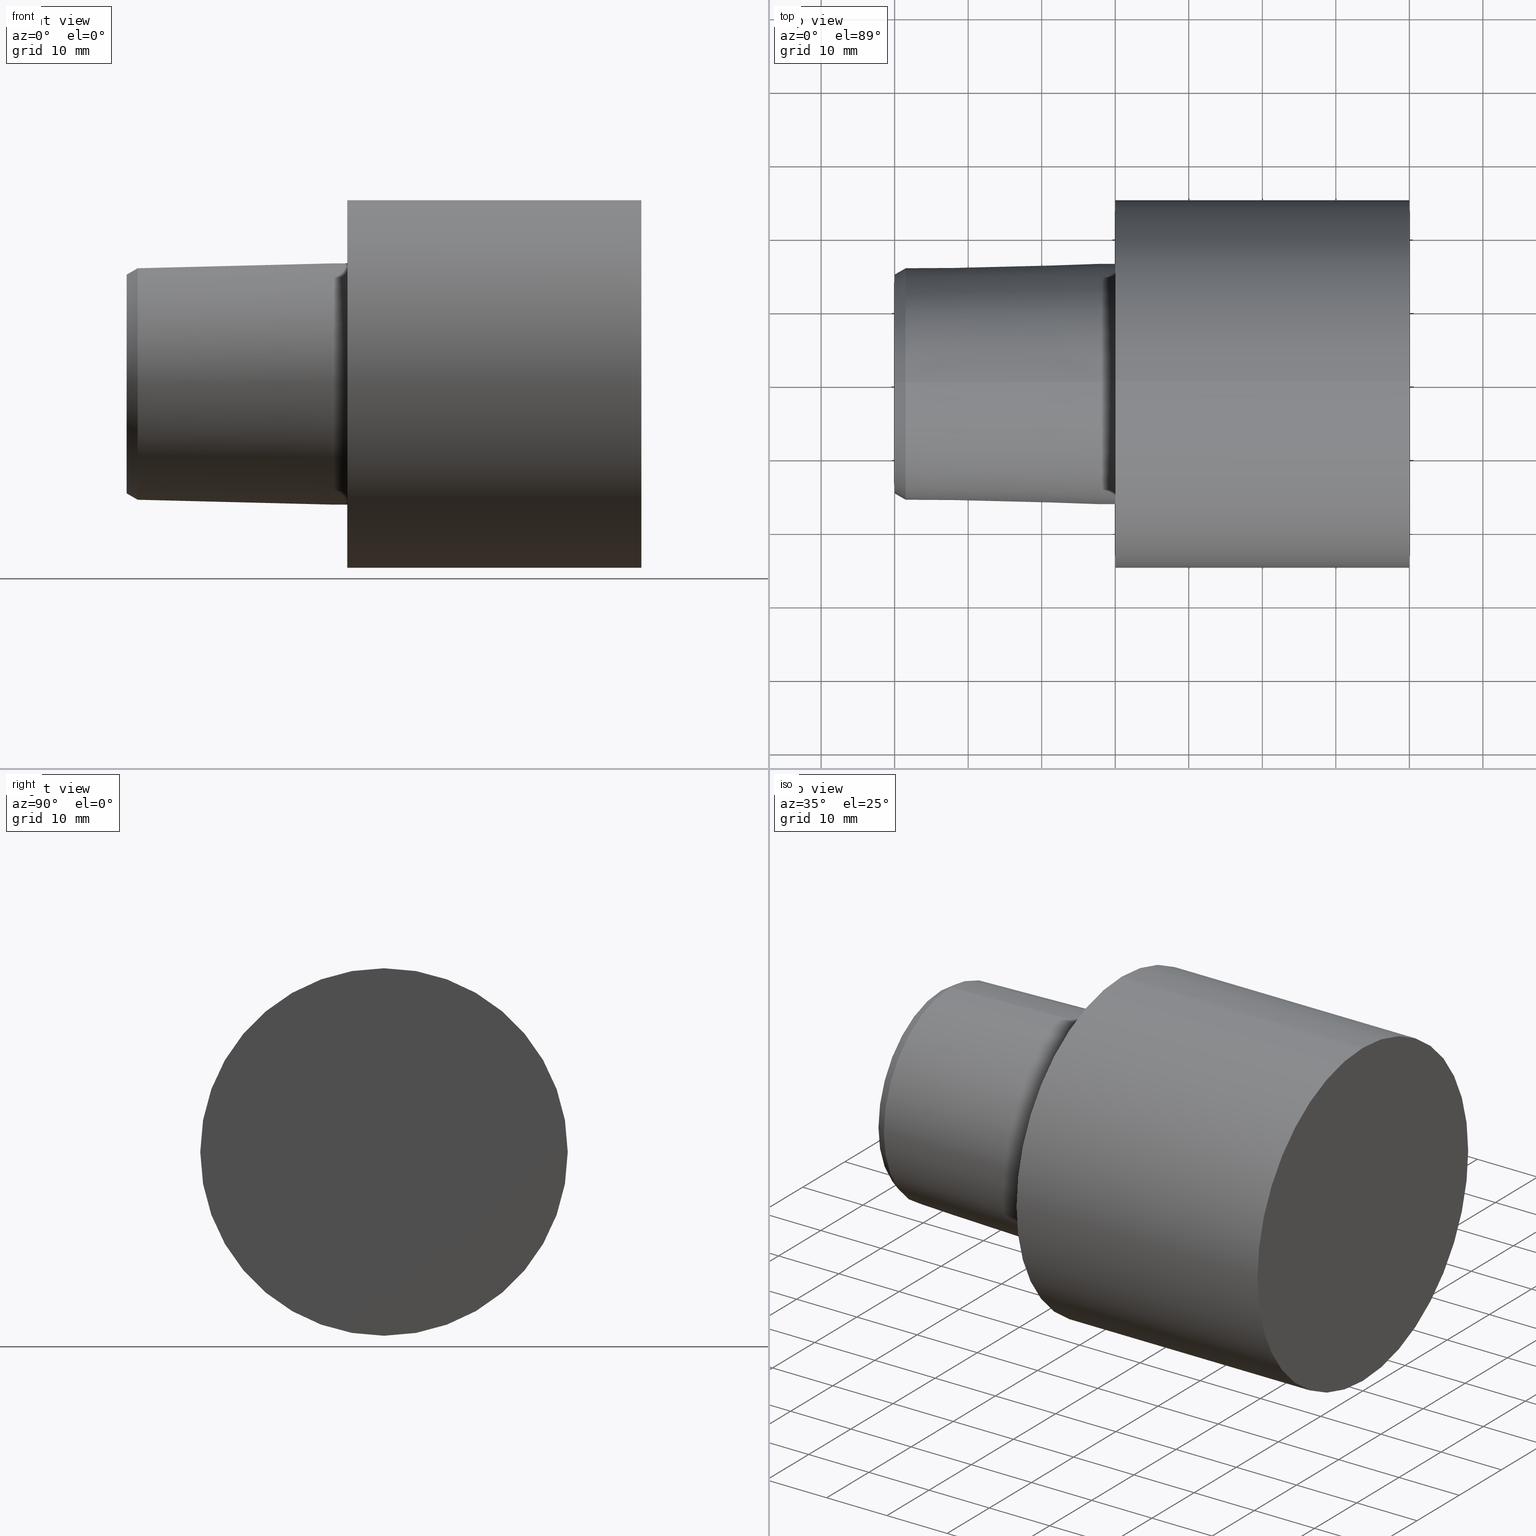
[diagram: canonical four-view strip — front | top / right | iso, engineering-drawing reading convention]
A machine part, canonical four-view strip (front | top / right | iso — engineering-drawing reading convention). The complete STEP part file that produces these views, byte-faithful:
ISO-10303-21;
HEADER;
FILE_DESCRIPTION (( 'STEP AP203' ),
    '1' );
FILE_NAME ('C5-S50-40.stp',
    '2022-03-11T15:28:41',
    ( '' ),
    ( '' ),
    'SwSTEP 2.0',
    'SolidWorks 2021',
    '' );
FILE_SCHEMA (( 'CONFIG_CONTROL_DESIGN' ));
ENDSEC;

DATA;
#1 = CARTESIAN_POINT ( 'NONE',  ( -29.99999996776130118, 0.000000000000000000, 0.000000000000000000 ) ) ;
#2 = EDGE_CURVE ( 'NONE', #222, #269, #85, .T. ) ;
#3 = VERTEX_POINT ( 'NONE', #274 ) ;
#4 = CARTESIAN_POINT ( 'NONE',  ( 39.99999995919999662, 0.000000000000000000, 0.000000000000000000 ) ) ;
#5 = ORIENTED_EDGE ( 'NONE', *, *, #141, .F. ) ;
#6 = APPLICATION_CONTEXT ( 'configuration controlled 3d designs of mechanical parts and assemblies' ) ;
#7 = CALENDAR_DATE ( 2022, 11, 3 ) ;
#8 = DESIGN_CONTEXT ( 'detailed design', #6, 'design' ) ;
#9 = ADVANCED_BREP_SHAPE_REPRESENTATION ( 'C5-S50-40', ( #226, #113 ), #223 ) ;
#10 = PERSON_AND_ORGANIZATION_ROLE ( 'creator' ) ;
#11 = DIRECTION ( 'NONE',  ( 0.000000000000000000, 0.000000000000000000, 1.000000000000000000 ) ) ;
#12 = ORIENTED_EDGE ( 'NONE', *, *, #221, .T. ) ;
#13 = AXIS2_PLACEMENT_3D ( 'NONE', #41, #203, #91 ) ;
#14 = APPROVAL_STATUS ( 'not_yet_approved' ) ;
#15 = DIRECTION ( 'NONE',  ( -1.000000000000000000, 0.000000000000000000, 0.000000000000000000 ) ) ;
#16 = PERSON_AND_ORGANIZATION ( #126, #311 ) ;
#17 = CARTESIAN_POINT ( 'NONE',  ( -29.99999996776130118, 0.000000000000000000, 16.40000330327199762 ) ) ;
#18 = VECTOR ( 'NONE', #308, 999.9999999999998863 ) ;
#19 = FACE_OUTER_BOUND ( 'NONE', #332, .T. ) ;
#20 = ORIENTED_EDGE ( 'NONE', *, *, #21, .T. ) ;
#21 = EDGE_CURVE ( 'NONE', #206, #299, #333, .T. ) ;
#22 = DIRECTION ( 'NONE',  ( 1.000000000000000000, 0.000000000000000000, 0.000000000000000000 ) ) ;
#23 = ORIENTED_EDGE ( 'NONE', *, *, #142, .T. ) ;
#24 = FACE_OUTER_BOUND ( 'NONE', #167, .T. ) ;
#25 = DIRECTION ( 'NONE',  ( -1.000000000000000000, 0.000000000000000000, 0.000000000000000000 ) ) ;
#26 = CIRCLE ( 'NONE', #168, 24.98999997451020150 ) ;
#27 = EDGE_LOOP ( 'NONE', ( #297, #101, #237, #354 ) ) ;
#28 = LINE ( 'NONE', #242, #321 ) ;
#29 = ORIENTED_EDGE ( 'NONE', *, *, #227, .F. ) ;
#30 = CC_DESIGN_PERSON_AND_ORGANIZATION_ASSIGNMENT ( #88, #175, ( #73 ) ) ;
#31 = DIRECTION ( 'NONE',  ( 1.000000000000000000, 0.000000000000000000, 0.000000000000000000 ) ) ;
#32 = EDGE_CURVE ( 'NONE', #83, #103, #34, .T. ) ;
#33 = PRODUCT_RELATED_PRODUCT_CATEGORY ( 'detail', '', ( #210 ) ) ;
#34 = CIRCLE ( 'NONE', #313, 14.87641846198772733 ) ;
#35 = DIRECTION ( 'NONE',  ( -1.000000000000000000, 0.000000000000000000, 0.000000000000000000 ) ) ;
#36 = PERSON_AND_ORGANIZATION ( #126, #311 ) ;
#37 = CARTESIAN_POINT ( 'NONE',  ( -28.49999997092999848, 0.000000000000000000, 0.000000000000000000 ) ) ;
#38 = AXIS2_PLACEMENT_3D ( 'NONE', #335, #164, #331 ) ;
#39 = FACE_OUTER_BOUND ( 'NONE', #229, .T. ) ;
#40 = CALENDAR_DATE ( 2022, 11, 3 ) ;
#41 = CARTESIAN_POINT ( 'NONE',  ( -2.199937517756064054, 0.000000000000000000, 0.000000000000000000 ) ) ;
#42 = ORIENTED_EDGE ( 'NONE', *, *, #2, .F. ) ;
#43 = CIRCLE ( 'NONE', #87, 16.40000330327199762 ) ;
#44 = CARTESIAN_POINT ( 'NONE',  ( -29.99999996776130118, 2.008421155135807723E-15, -16.40000330327199762 ) ) ;
#45 = CARTESIAN_POINT ( 'NONE',  ( 0.000000000000000000, 0.000000000000000000, 0.000000000000000000 ) ) ;
#46 = ORIENTED_EDGE ( 'NONE', *, *, #21, .F. ) ;
#47 = ADVANCED_FACE ( 'NONE', ( #280 ), #162, .T. ) ;
#48 = APPROVAL ( #14, 'UNSPECIFIED' ) ;
#49 = DIRECTION ( 'NONE',  ( -1.000000000000000000, 0.000000000000000000, 0.000000000000000000 ) ) ;
#50 = EDGE_LOOP ( 'NONE', ( #160, #188, #42, #29 ) ) ;
#51 = CC_DESIGN_APPROVAL ( #89, ( #73 ) ) ;
#52 = CARTESIAN_POINT ( 'NONE',  ( -2.199937517756064054, 0.000000000000000000, 0.000000000000000000 ) ) ;
#53 = PLANE ( 'NONE',  #59 ) ;
#54 = CARTESIAN_POINT ( 'NONE',  ( -29.99999996776130118, 0.000000000000000000, 0.000000000000000000 ) ) ;
#55 = CIRCLE ( 'NONE', #220, 14.87641846198772733 ) ;
#56 = ORIENTED_EDGE ( 'NONE', *, *, #151, .T. ) ;
#57 = EDGE_CURVE ( 'NONE', #103, #299, #28, .T. ) ;
#58 = AXIS2_PLACEMENT_3D ( 'NONE', #252, #165, #191 ) ;
#59 = AXIS2_PLACEMENT_3D ( 'NONE', #136, #108, #337 ) ;
#60 = ADVANCED_FACE ( 'NONE', ( #138 ), #328, .F. ) ;
#61 = ADVANCED_FACE ( 'NONE', ( #304 ), #53, .F. ) ;
#62 = APPROVAL_ROLE ( '' ) ;
#63 = CARTESIAN_POINT ( 'NONE',  ( 0.000000000000000000, 24.98999997451020150, 0.000000000000000000 ) ) ;
#64 = FACE_OUTER_BOUND ( 'NONE', #294, .T. ) ;
#65 = COORDINATED_UNIVERSAL_TIME_OFFSET ( 6, 0, .BEHIND. ) ;
#66 = DIRECTION ( 'NONE',  ( 0.000000000000000000, 0.000000000000000000, -1.000000000000000000 ) ) ;
#67 = ORIENTED_EDGE ( 'NONE', *, *, #151, .F. ) ;
#68 = CONICAL_SURFACE ( 'NONE', #236, 15.74244386394270734, 0.5235987755982987046 ) ;
#69 = DIRECTION ( 'NONE',  ( 0.000000000000000000, 0.000000000000000000, 1.000000000000000000 ) ) ;
#70 = ORIENTED_EDGE ( 'NONE', *, *, #329, .T. ) ;
#71 = DIRECTION ( 'NONE',  ( 0.000000000000000000, 0.000000000000000000, 1.000000000000000000 ) ) ;
#72 = DIRECTION ( 'NONE',  ( 0.000000000000000000, 0.000000000000000000, 1.000000000000000000 ) ) ;
#73 = PRODUCT_DEFINITION_FORMATION_WITH_SPECIFIED_SOURCE ( 'ANY', '', #210, .NOT_KNOWN. ) ;
#74 = CC_DESIGN_SECURITY_CLASSIFICATION ( #241, ( #73 ) ) ;
#75 = ADVANCED_FACE ( 'NONE', ( #343 ), #68, .T. ) ;
#76 = ORIENTED_EDGE ( 'NONE', *, *, #141, .T. ) ;
#77 = EDGE_CURVE ( 'NONE', #269, #222, #277, .T. ) ;
#78 = DIRECTION ( 'NONE',  ( 0.000000000000000000, 0.000000000000000000, 1.000000000000000000 ) ) ;
#79 = CARTESIAN_POINT ( 'NONE',  ( -28.49999997092999848, 1.968157252004620712E-15, 15.74244386394270734 ) ) ;
#80 = DIRECTION ( 'NONE',  ( 0.000000000000000000, 0.000000000000000000, 1.000000000000000000 ) ) ;
#81 = EDGE_CURVE ( 'NONE', #83, #206, #256, .T. ) ;
#82 = VERTEX_POINT ( 'NONE', #148 ) ;
#83 = VERTEX_POINT ( 'NONE', #323 ) ;
#84 = LOCAL_TIME ( 9, 28, 41.00000000000000000, #295 ) ;
#85 = CIRCLE ( 'NONE', #38, 24.98999997451020150 ) ;
#86 = CARTESIAN_POINT ( 'NONE',  ( 0.000000000000000000, 0.000000000000000000, 0.000000000000000000 ) ) ;
#87 = AXIS2_PLACEMENT_3D ( 'NONE', #45, #273, #169 ) ;
#88 = PERSON_AND_ORGANIZATION ( #126, #311 ) ;
#89 = APPROVAL ( #99, 'UNSPECIFIED' ) ;
#90 = PERSON_AND_ORGANIZATION ( #126, #311 ) ;
#91 = DIRECTION ( 'NONE',  ( 0.000000000000000000, 0.000000000000000000, -1.000000000000000000 ) ) ;
#92 = PERSON_AND_ORGANIZATION_ROLE ( 'classification_officer' ) ;
#93 = CARTESIAN_POINT ( 'NONE',  ( -29.99999996776130118, 0.000000000000000000, 0.000000000000000000 ) ) ;
#94 = CONICAL_SURFACE ( 'NONE', #286, 16.40000330327199762, 0.02499699292341668252 ) ;
#95 = ADVANCED_FACE ( 'NONE', ( #268 ), #173, .T. ) ;
#96 = APPROVAL_DATE_TIME ( #149, #353 ) ;
#97 = DIRECTION ( 'NONE',  ( 0.000000000000000000, 0.000000000000000000, 1.000000000000000000 ) ) ;
#98 = VECTOR ( 'NONE', #296, 1000.000000000000000 ) ;
#99 = APPROVAL_STATUS ( 'not_yet_approved' ) ;
#100 = DIRECTION ( 'NONE',  ( 1.000000000000000000, 0.000000000000000000, 0.000000000000000000 ) ) ;
#101 = ORIENTED_EDGE ( 'NONE', *, *, #57, .T. ) ;
#102 = CARTESIAN_POINT ( 'NONE',  ( -29.99999996776130118, 0.000000000000000000, 0.000000000000000000 ) ) ;
#103 = VERTEX_POINT ( 'NONE', #157 ) ;
#104 = DIRECTION ( 'NONE',  ( 0.8660254037844387076, 6.123233995736768501E-17, 0.4999999999999998890 ) ) ;
#105 =( NAMED_UNIT ( * ) SI_UNIT ( $, .STERADIAN. ) SOLID_ANGLE_UNIT ( ) );
#106 = ORIENTED_EDGE ( 'NONE', *, *, #312, .F. ) ;
#107 = CIRCLE ( 'NONE', #218, 16.40000330327199762 ) ;
#108 = DIRECTION ( 'NONE',  ( 1.000000000000000000, 0.000000000000000000, 0.000000000000000000 ) ) ;
#109 = AXIS2_PLACEMENT_3D ( 'NONE', #93, #205, #97 ) ;
#110 = ORIENTED_EDGE ( 'NONE', *, *, #81, .T. ) ;
#111 = ADVANCED_FACE ( 'NONE', ( #19 ), #317, .T. ) ;
#112 = CC_DESIGN_DATE_AND_TIME_ASSIGNMENT ( #156, #267, ( #241 ) ) ;
#113 = AXIS2_PLACEMENT_3D ( 'NONE', #183, #71, #118 ) ;
#114 = CLOSED_SHELL ( 'NONE', ( #61, #189, #254, #47, #145, #305, #60, #251, #111, #95, #75 ) ) ;
#115 = EDGE_CURVE ( 'NONE', #206, #197, #345, .T. ) ;
#116 = APPROVAL_DATE_TIME ( #322, #48 ) ;
#117 = DIRECTION ( 'NONE',  ( -1.000000000000000000, 0.000000000000000000, 0.000000000000000000 ) ) ;
#118 = DIRECTION ( 'NONE',  ( 1.000000000000000000, 0.000000000000000000, 0.000000000000000000 ) ) ;
#119 = CARTESIAN_POINT ( 'NONE',  ( 0.000000000000000000, 0.000000000000000000, 24.98999997451020150 ) ) ;
#120 = ORIENTED_EDGE ( 'NONE', *, *, #77, .T. ) ;
#121 = PERSON_AND_ORGANIZATION_ROLE ( 'creator' ) ;
#122 = LINE ( 'NONE', #44, #98 ) ;
#123 = VERTEX_POINT ( 'NONE', #125 ) ;
#124 = APPROVAL_STATUS ( 'not_yet_approved' ) ;
#125 = CARTESIAN_POINT ( 'NONE',  ( 39.99999995919999662, 3.060392347947635560E-15, -24.98999997451020150 ) ) ;
#126 = PERSON ( 'UNSPECIFIED', 'UNSPECIFIED', 'UNSPECIFIED', ('UNSPECIFIED'), ('UNSPECIFIED'), ('UNSPECIFIED') ) ;
#127 = ORIENTED_EDGE ( 'NONE', *, *, #172, .F. ) ;
#128 = CC_DESIGN_PERSON_AND_ORGANIZATION_ASSIGNMENT ( #211, #92, ( #241 ) ) ;
#129 = CARTESIAN_POINT ( 'NONE',  ( -2.199937517756064054, 2.008421155135807723E-15, -16.40000330327199762 ) ) ;
#130 = CARTESIAN_POINT ( 'NONE',  ( -2.199937517756064054, 2.008421155135807723E-15, 16.40000330327199762 ) ) ;
#131 = DIRECTION ( 'NONE',  ( 0.000000000000000000, 0.000000000000000000, 1.000000000000000000 ) ) ;
#132 = APPLICATION_CONTEXT ( 'configuration controlled 3d designs of mechanical parts and assemblies' ) ;
#133 = ORIENTED_EDGE ( 'NONE', *, *, #77, .F. ) ;
#134 = AXIS2_PLACEMENT_3D ( 'NONE', #4, #249, #78 ) ;
#135 =( LENGTH_UNIT ( ) NAMED_UNIT ( * ) SI_UNIT ( .MILLI., .METRE. ) );
#136 = CARTESIAN_POINT ( 'NONE',  ( -29.99999996776130118, 14.87641846198772733, 0.000000000000000000 ) ) ;
#137 = CC_DESIGN_PERSON_AND_ORGANIZATION_ASSIGNMENT ( #230, #10, ( #73 ) ) ;
#138 = FACE_OUTER_BOUND ( 'NONE', #264, .T. ) ;
#139 = CC_DESIGN_APPROVAL ( #353, ( #177 ) ) ;
#140 = EDGE_LOOP ( 'NONE', ( #127, #198, #23, #194 ) ) ;
#141 = EDGE_CURVE ( 'NONE', #82, #306, #215, .T. ) ;
#142 = EDGE_CURVE ( 'NONE', #82, #155, #235, .T. ) ;
#143 = DIRECTION ( 'NONE',  ( 0.000000000000000000, 0.000000000000000000, -1.000000000000000000 ) ) ;
#144 = CIRCLE ( 'NONE', #349, 24.98999997451020150 ) ;
#145 = ADVANCED_FACE ( 'NONE', ( #184, #64 ), #351, .F. ) ;
#146 = MECHANICAL_CONTEXT ( 'NONE', #132, 'mechanical' ) ;
#147 = LOCAL_TIME ( 9, 28, 41.00000000000000000, #292 ) ;
#148 = CARTESIAN_POINT ( 'NONE',  ( 0.000000000000000000, 0.000000000000000000, 16.40000330327199762 ) ) ;
#149 = DATE_AND_TIME ( #265, #84 ) ;
#150 = DIRECTION ( 'NONE',  ( 0.000000000000000000, 0.000000000000000000, -1.000000000000000000 ) ) ;
#151 = EDGE_CURVE ( 'NONE', #123, #3, #26, .T. ) ;
#152 = ORIENTED_EDGE ( 'NONE', *, *, #341, .F. ) ;
#153 = APPLICATION_PROTOCOL_DEFINITION ( 'international standard', 'config_control_design', 1994, #6 ) ;
#154 = DIRECTION ( 'NONE',  ( 0.9996875914402667540, 0.000000000000000000, -0.02499438977767824352 ) ) ;
#155 = VERTEX_POINT ( 'NONE', #352 ) ;
#156 = DATE_AND_TIME ( #180, #199 ) ;
#157 = CARTESIAN_POINT ( 'NONE',  ( -29.99999996776130118, 1.874864587049208810E-15, 14.87641846198772733 ) ) ;
#158 = AXIS2_PLACEMENT_3D ( 'NONE', #54, #248, #298 ) ;
#159 = DIRECTION ( 'NONE',  ( 0.000000000000000000, 0.000000000000000000, 1.000000000000000000 ) ) ;
#160 = ORIENTED_EDGE ( 'NONE', *, *, #240, .T. ) ;
#161 = CC_DESIGN_DATE_AND_TIME_ASSIGNMENT ( #178, #258, ( #177 ) ) ;
#162 = CYLINDRICAL_SURFACE ( 'NONE', #200, 16.40000330327199762 ) ;
#163 = DIRECTION ( 'NONE',  ( 0.000000000000000000, 0.000000000000000000, 1.000000000000000000 ) ) ;
#164 = DIRECTION ( 'NONE',  ( -1.000000000000000000, 0.000000000000000000, 0.000000000000000000 ) ) ;
#165 = DIRECTION ( 'NONE',  ( -1.000000000000000000, 0.000000000000000000, 0.000000000000000000 ) ) ;
#166 = CC_DESIGN_PERSON_AND_ORGANIZATION_ASSIGNMENT ( #201, #262, ( #210 ) ) ;
#167 = EDGE_LOOP ( 'NONE', ( #190, #56, #217, #133 ) ) ;
#168 = AXIS2_PLACEMENT_3D ( 'NONE', #289, #117, #159 ) ;
#169 = DIRECTION ( 'NONE',  ( 0.000000000000000000, 0.000000000000000000, 1.000000000000000000 ) ) ;
#170 = ORIENTED_EDGE ( 'NONE', *, *, #312, .T. ) ;
#171 = CARTESIAN_POINT ( 'NONE',  ( -29.99999996776130118, 0.000000000000000000, 0.000000000000000000 ) ) ;
#172 = EDGE_CURVE ( 'NONE', #306, #197, #122, .T. ) ;
#173 = CONICAL_SURFACE ( 'NONE', #13, 16.40000330327199762, 0.02499699292341668252 ) ;
#174 = CONICAL_SURFACE ( 'NONE', #209, 15.74244386394270734, 0.5235987755982987046 ) ;
#175 = PERSON_AND_ORGANIZATION_ROLE ( 'design_supplier' ) ;
#176 = LINE ( 'NONE', #285, #307 ) ;
#177 = PRODUCT_DEFINITION ( 'UNKNOWN', '', #73, #8 ) ;
#178 = DATE_AND_TIME ( #350, #147 ) ;
#179 = DIRECTION ( 'NONE',  ( -1.000000000000000000, 0.000000000000000000, 0.000000000000000000 ) ) ;
#180 = CALENDAR_DATE ( 2022, 11, 3 ) ;
#181 = LINE ( 'NONE', #291, #336 ) ;
#182 = AXIS2_PLACEMENT_3D ( 'NONE', #63, #100, #186 ) ;
#183 = CARTESIAN_POINT ( 'NONE',  ( 0.000000000000000000, 0.000000000000000000, 0.000000000000000000 ) ) ;
#184 = FACE_BOUND ( 'NONE', #253, .T. ) ;
#185 = ORIENTED_EDGE ( 'NONE', *, *, #334, .F. ) ;
#186 = DIRECTION ( 'NONE',  ( 0.000000000000000000, 1.000000000000000000, 0.000000000000000000 ) ) ;
#187 = LOCAL_TIME ( 9, 28, 41.00000000000000000, #65 ) ;
#188 = ORIENTED_EDGE ( 'NONE', *, *, #257, .T. ) ;
#189 = ADVANCED_FACE ( 'NONE', ( #348 ), #174, .T. ) ;
#190 = ORIENTED_EDGE ( 'NONE', *, *, #257, .F. ) ;
#191 = DIRECTION ( 'NONE',  ( 0.000000000000000000, 0.000000000000000000, 1.000000000000000000 ) ) ;
#192 = CARTESIAN_POINT ( 'NONE',  ( 0.000000000000000000, 2.008421155135807723E-15, -16.40000330327199762 ) ) ;
#193 = ORIENTED_EDGE ( 'NONE', *, *, #142, .F. ) ;
#194 = ORIENTED_EDGE ( 'NONE', *, *, #329, .F. ) ;
#195 = AXIS2_PLACEMENT_3D ( 'NONE', #325, #179, #69 ) ;
#196 = DIRECTION ( 'NONE',  ( 0.000000000000000000, 0.000000000000000000, 1.000000000000000000 ) ) ;
#197 = VERTEX_POINT ( 'NONE', #129 ) ;
#198 = ORIENTED_EDGE ( 'NONE', *, *, #334, .T. ) ;
#199 = LOCAL_TIME ( 9, 28, 41.00000000000000000, #314 ) ;
#200 = AXIS2_PLACEMENT_3D ( 'NONE', #1, #278, #131 ) ;
#201 = PERSON_AND_ORGANIZATION ( #126, #311 ) ;
#202 = DATE_AND_TIME ( #40, #318 ) ;
#203 = DIRECTION ( 'NONE',  ( 1.000000000000000000, 0.000000000000000000, 0.000000000000000000 ) ) ;
#204 = APPROVAL_ROLE ( '' ) ;
#205 = DIRECTION ( 'NONE',  ( -1.000000000000000000, 0.000000000000000000, 0.000000000000000000 ) ) ;
#206 = VERTEX_POINT ( 'NONE', #238 ) ;
#207 = APPROVAL_DATE_TIME ( #202, #89 ) ;
#208 = CARTESIAN_POINT ( 'NONE',  ( -2.199937517756064054, 0.000000000000000000, 0.000000000000000000 ) ) ;
#209 = AXIS2_PLACEMENT_3D ( 'NONE', #37, #22, #150 ) ;
#210 = PRODUCT ( 'C5-S50-40', 'C5-S50-40', '', ( #146 ) ) ;
#211 = PERSON_AND_ORGANIZATION ( #126, #311 ) ;
#212 = DIRECTION ( 'NONE',  ( -1.000000000000000000, 0.000000000000000000, 0.000000000000000000 ) ) ;
#213 = UNCERTAINTY_MEASURE_WITH_UNIT (LENGTH_MEASURE( 1.000000000000000082E-05 ), #135, 'distance_accuracy_value', 'NONE');
#214 = ORIENTED_EDGE ( 'NONE', *, *, #32, .F. ) ;
#215 = CIRCLE ( 'NONE', #195, 16.40000330327199762 ) ;
#216 = CARTESIAN_POINT ( 'NONE',  ( -28.49999997092999848, 0.000000000000000000, 0.000000000000000000 ) ) ;
#217 = ORIENTED_EDGE ( 'NONE', *, *, #227, .T. ) ;
#218 = AXIS2_PLACEMENT_3D ( 'NONE', #52, #49, #163 ) ;
#219 = ORIENTED_EDGE ( 'NONE', *, *, #32, .T. ) ;
#220 = AXIS2_PLACEMENT_3D ( 'NONE', #102, #315, #263 ) ;
#221 = EDGE_CURVE ( 'NONE', #103, #83, #55, .T. ) ;
#222 = VERTEX_POINT ( 'NONE', #119 ) ;
#223 =( GEOMETRIC_REPRESENTATION_CONTEXT ( 3 ) GLOBAL_UNCERTAINTY_ASSIGNED_CONTEXT ( ( #213 ) ) GLOBAL_UNIT_ASSIGNED_CONTEXT ( ( #135, #300, #105 ) ) REPRESENTATION_CONTEXT ( 'NONE', 'WORKASPACE' ) );
#224 = DIRECTION ( 'NONE',  ( 0.000000000000000000, 0.000000000000000000, 1.000000000000000000 ) ) ;
#225 = AXIS2_PLACEMENT_3D ( 'NONE', #355, #25, #244 ) ;
#226 = MANIFOLD_SOLID_BREP ( 'Scale1', #114 ) ;
#227 = EDGE_CURVE ( 'NONE', #3, #222, #176, .T. ) ;
#228 = CARTESIAN_POINT ( 'NONE',  ( -29.99999996776130118, 0.000000000000000000, 0.000000000000000000 ) ) ;
#229 = EDGE_LOOP ( 'NONE', ( #106, #46, #270, #70 ) ) ;
#230 = PERSON_AND_ORGANIZATION ( #126, #311 ) ;
#231 = DIRECTION ( 'NONE',  ( -1.000000000000000000, 0.000000000000000000, 0.000000000000000000 ) ) ;
#232 = ORIENTED_EDGE ( 'NONE', *, *, #279, .F. ) ;
#233 = CARTESIAN_POINT ( 'NONE',  ( -2.199937517756064054, 0.000000000000000000, -16.40000330327199762 ) ) ;
#234 = PERSON_AND_ORGANIZATION ( #126, #311 ) ;
#235 = LINE ( 'NONE', #17, #283 ) ;
#236 = AXIS2_PLACEMENT_3D ( 'NONE', #282, #31, #143 ) ;
#237 = ORIENTED_EDGE ( 'NONE', *, *, #279, .T. ) ;
#238 = CARTESIAN_POINT ( 'NONE',  ( -28.49999997092999848, 0.000000000000000000, -15.74244386394270734 ) ) ;
#239 = ORIENTED_EDGE ( 'NONE', *, *, #57, .F. ) ;
#240 = EDGE_CURVE ( 'NONE', #3, #123, #144, .T. ) ;
#241 = SECURITY_CLASSIFICATION ( '', '', #288 ) ;
#242 = CARTESIAN_POINT ( 'NONE',  ( -28.49999997092999848, 1.927893348873434490E-15, 15.74244386394270734 ) ) ;
#243 = CARTESIAN_POINT ( 'NONE',  ( 0.000000000000000000, 3.060392347947635560E-15, -24.98999997451020150 ) ) ;
#244 = DIRECTION ( 'NONE',  ( 0.000000000000000000, 0.000000000000000000, 1.000000000000000000 ) ) ;
#245 = AXIS2_PLACEMENT_3D ( 'NONE', #86, #255, #224 ) ;
#246 = DIRECTION ( 'NONE',  ( -1.000000000000000000, 0.000000000000000000, 0.000000000000000000 ) ) ;
#247 = EDGE_LOOP ( 'NONE', ( #232, #170, #320, #272 ) ) ;
#248 = DIRECTION ( 'NONE',  ( -1.000000000000000000, 0.000000000000000000, 0.000000000000000000 ) ) ;
#249 = DIRECTION ( 'NONE',  ( -1.000000000000000000, 0.000000000000000000, 0.000000000000000000 ) ) ;
#250 = CC_DESIGN_APPROVAL ( #48, ( #241 ) ) ;
#251 = ADVANCED_FACE ( 'NONE', ( #293 ), #346, .T. ) ;
#252 = CARTESIAN_POINT ( 'NONE',  ( -2.199937517756064054, 0.000000000000000000, 0.000000000000000000 ) ) ;
#253 = EDGE_LOOP ( 'NONE', ( #5, #185 ) ) ;
#254 = ADVANCED_FACE ( 'NONE', ( #39 ), #94, .T. ) ;
#255 = DIRECTION ( 'NONE',  ( -1.000000000000000000, 0.000000000000000000, 0.000000000000000000 ) ) ;
#256 = LINE ( 'NONE', #339, #261 ) ;
#257 = EDGE_CURVE ( 'NONE', #123, #269, #181, .T. ) ;
#258 = DATE_TIME_ROLE ( 'creation_date' ) ;
#259 = CARTESIAN_POINT ( 'NONE',  ( 39.99999995919999662, 0.000000000000000000, 0.000000000000000000 ) ) ;
#260 = EDGE_LOOP ( 'NONE', ( #219, #12 ) ) ;
#261 = VECTOR ( 'NONE', #266, 1000.000000000000000 ) ;
#262 = PERSON_AND_ORGANIZATION_ROLE ( 'design_owner' ) ;
#263 = DIRECTION ( 'NONE',  ( 0.000000000000000000, 0.000000000000000000, 1.000000000000000000 ) ) ;
#264 = EDGE_LOOP ( 'NONE', ( #309, #67 ) ) ;
#265 = CALENDAR_DATE ( 2022, 11, 3 ) ;
#266 = DIRECTION ( 'NONE',  ( 0.8660254037844387076, 0.000000000000000000, -0.4999999999999998890 ) ) ;
#267 = DATE_TIME_ROLE ( 'classification_date' ) ;
#268 = FACE_OUTER_BOUND ( 'NONE', #247, .T. ) ;
#269 = VERTEX_POINT ( 'NONE', #243 ) ;
#270 = ORIENTED_EDGE ( 'NONE', *, *, #115, .T. ) ;
#271 = DIRECTION ( 'NONE',  ( -1.000000000000000000, 0.000000000000000000, 0.000000000000000000 ) ) ;
#272 = ORIENTED_EDGE ( 'NONE', *, *, #115, .F. ) ;
#273 = DIRECTION ( 'NONE',  ( -1.000000000000000000, 0.000000000000000000, 0.000000000000000000 ) ) ;
#274 = CARTESIAN_POINT ( 'NONE',  ( 39.99999995919999662, 0.000000000000000000, 24.98999997451020150 ) ) ;
#275 = CYLINDRICAL_SURFACE ( 'NONE', #158, 24.98999997451020150 ) ;
#276 = ORIENTED_EDGE ( 'NONE', *, *, #172, .T. ) ;
#277 = CIRCLE ( 'NONE', #245, 24.98999997451020150 ) ;
#278 = DIRECTION ( 'NONE',  ( -1.000000000000000000, 0.000000000000000000, 0.000000000000000000 ) ) ;
#279 = EDGE_CURVE ( 'NONE', #299, #206, #303, .T. ) ;
#280 = FACE_OUTER_BOUND ( 'NONE', #140, .T. ) ;
#281 = APPROVAL_PERSON_ORGANIZATION ( #36, #48, #204 ) ;
#282 = CARTESIAN_POINT ( 'NONE',  ( -28.49999997092999848, 0.000000000000000000, 0.000000000000000000 ) ) ;
#283 = VECTOR ( 'NONE', #15, 1000.000000000000000 ) ;
#284 = CC_DESIGN_PERSON_AND_ORGANIZATION_ASSIGNMENT ( #234, #121, ( #177 ) ) ;
#285 = CARTESIAN_POINT ( 'NONE',  ( -29.99999996776130118, 0.000000000000000000, 24.98999997451020150 ) ) ;
#286 = AXIS2_PLACEMENT_3D ( 'NONE', #208, #319, #66 ) ;
#287 = APPROVAL_PERSON_ORGANIZATION ( #16, #89, #347 ) ;
#288 = SECURITY_CLASSIFICATION_LEVEL ( 'unclassified' ) ;
#289 = CARTESIAN_POINT ( 'NONE',  ( 39.99999995919999662, 0.000000000000000000, 0.000000000000000000 ) ) ;
#290 = AXIS2_PLACEMENT_3D ( 'NONE', #228, #212, #72 ) ;
#291 = CARTESIAN_POINT ( 'NONE',  ( -29.99999996776130118, 3.060392347947635560E-15, -24.98999997451020150 ) ) ;
#292 = COORDINATED_UNIVERSAL_TIME_OFFSET ( 6, 0, .BEHIND. ) ;
#293 = FACE_OUTER_BOUND ( 'NONE', #50, .T. ) ;
#294 = EDGE_LOOP ( 'NONE', ( #301, #120 ) ) ;
#295 = COORDINATED_UNIVERSAL_TIME_OFFSET ( 6, 0, .BEHIND. ) ;
#296 = DIRECTION ( 'NONE',  ( -1.000000000000000000, 0.000000000000000000, 0.000000000000000000 ) ) ;
#297 = ORIENTED_EDGE ( 'NONE', *, *, #221, .F. ) ;
#298 = DIRECTION ( 'NONE',  ( 0.000000000000000000, 0.000000000000000000, 1.000000000000000000 ) ) ;
#299 = VERTEX_POINT ( 'NONE', #79 ) ;
#300 =( NAMED_UNIT ( * ) PLANE_ANGLE_UNIT ( ) SI_UNIT ( $, .RADIAN. ) );
#301 = ORIENTED_EDGE ( 'NONE', *, *, #2, .T. ) ;
#302 = LINE ( 'NONE', #130, #18 ) ;
#303 = CIRCLE ( 'NONE', #330, 15.74244386394270734 ) ;
#304 = FACE_OUTER_BOUND ( 'NONE', #260, .T. ) ;
#305 = ADVANCED_FACE ( 'NONE', ( #24 ), #275, .T. ) ;
#306 = VERTEX_POINT ( 'NONE', #192 ) ;
#307 = VECTOR ( 'NONE', #35, 1000.000000000000000 ) ;
#308 = DIRECTION ( 'NONE',  ( 0.9996875914402667540, 3.060929943787493688E-18, 0.02499438977767824352 ) ) ;
#309 = ORIENTED_EDGE ( 'NONE', *, *, #240, .F. ) ;
#310 = DIRECTION ( 'NONE',  ( -1.000000000000000000, 0.000000000000000000, 0.000000000000000000 ) ) ;
#311 = ORGANIZATION ( 'UNSPECIFIED', 'UNSPECIFIED', '' ) ;
#312 = EDGE_CURVE ( 'NONE', #299, #155, #302, .T. ) ;
#313 = AXIS2_PLACEMENT_3D ( 'NONE', #171, #310, #80 ) ;
#314 = COORDINATED_UNIVERSAL_TIME_OFFSET ( 6, 0, .BEHIND. ) ;
#315 = DIRECTION ( 'NONE',  ( -1.000000000000000000, 0.000000000000000000, 0.000000000000000000 ) ) ;
#316 = COORDINATED_UNIVERSAL_TIME_OFFSET ( 6, 0, .BEHIND. ) ;
#317 = CYLINDRICAL_SURFACE ( 'NONE', #290, 16.40000330327199762 ) ;
#318 = LOCAL_TIME ( 9, 28, 41.00000000000000000, #316 ) ;
#319 = DIRECTION ( 'NONE',  ( 1.000000000000000000, 0.000000000000000000, 0.000000000000000000 ) ) ;
#320 = ORIENTED_EDGE ( 'NONE', *, *, #341, .T. ) ;
#321 = VECTOR ( 'NONE', #104, 1000.000000000000000 ) ;
#322 = DATE_AND_TIME ( #7, #187 ) ;
#323 = CARTESIAN_POINT ( 'NONE',  ( -29.99999996776130118, 0.000000000000000000, -14.87641846198772733 ) ) ;
#324 = SHAPE_DEFINITION_REPRESENTATION ( #327, #9 ) ;
#325 = CARTESIAN_POINT ( 'NONE',  ( 0.000000000000000000, 0.000000000000000000, 0.000000000000000000 ) ) ;
#326 = EDGE_LOOP ( 'NONE', ( #239, #214, #110, #20 ) ) ;
#327 = PRODUCT_DEFINITION_SHAPE ( 'NONE', 'NONE',  #177 ) ;
#328 = PLANE ( 'NONE',  #134 ) ;
#329 = EDGE_CURVE ( 'NONE', #197, #155, #107, .T. ) ;
#330 = AXIS2_PLACEMENT_3D ( 'NONE', #216, #271, #196 ) ;
#331 = DIRECTION ( 'NONE',  ( 0.000000000000000000, 0.000000000000000000, 1.000000000000000000 ) ) ;
#332 = EDGE_LOOP ( 'NONE', ( #76, #276, #152, #193 ) ) ;
#333 = CIRCLE ( 'NONE', #225, 15.74244386394270734 ) ;
#334 = EDGE_CURVE ( 'NONE', #306, #82, #43, .T. ) ;
#335 = CARTESIAN_POINT ( 'NONE',  ( 0.000000000000000000, 0.000000000000000000, 0.000000000000000000 ) ) ;
#336 = VECTOR ( 'NONE', #246, 1000.000000000000000 ) ;
#337 = DIRECTION ( 'NONE',  ( 0.000000000000000000, 1.000000000000000000, 0.000000000000000000 ) ) ;
#338 = CIRCLE ( 'NONE', #58, 16.40000330327199762 ) ;
#339 = CARTESIAN_POINT ( 'NONE',  ( -28.49999997092999848, 0.000000000000000000, -15.74244386394270734 ) ) ;
#340 = VECTOR ( 'NONE', #154, 999.9999999999998863 ) ;
#341 = EDGE_CURVE ( 'NONE', #155, #197, #338, .T. ) ;
#342 = APPROVAL_PERSON_ORGANIZATION ( #90, #353, #62 ) ;
#343 = FACE_OUTER_BOUND ( 'NONE', #27, .T. ) ;
#344 = APPLICATION_PROTOCOL_DEFINITION ( 'international standard', 'config_control_design', 1994, #132 ) ;
#345 = LINE ( 'NONE', #233, #340 ) ;
#346 = CYLINDRICAL_SURFACE ( 'NONE', #109, 24.98999997451020150 ) ;
#347 = APPROVAL_ROLE ( '' ) ;
#348 = FACE_OUTER_BOUND ( 'NONE', #326, .T. ) ;
#349 = AXIS2_PLACEMENT_3D ( 'NONE', #259, #231, #11 ) ;
#350 = CALENDAR_DATE ( 2022, 11, 3 ) ;
#351 = PLANE ( 'NONE',  #182 ) ;
#352 = CARTESIAN_POINT ( 'NONE',  ( -2.199937517756064054, 0.000000000000000000, 16.40000330327199762 ) ) ;
#353 = APPROVAL ( #124, 'UNSPECIFIED' ) ;
#354 = ORIENTED_EDGE ( 'NONE', *, *, #81, .F. ) ;
#355 = CARTESIAN_POINT ( 'NONE',  ( -28.49999997092999848, 0.000000000000000000, 0.000000000000000000 ) ) ;
ENDSEC;
END-ISO-10303-21;
